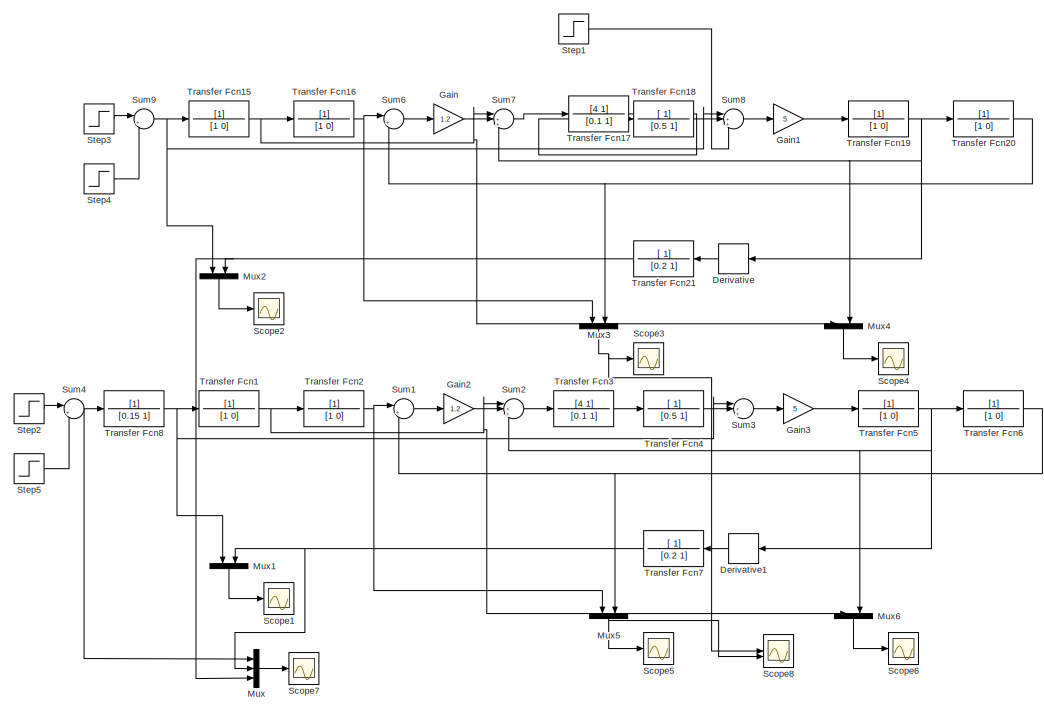
[diagram: root canvas - part 1/2, left side, full height]
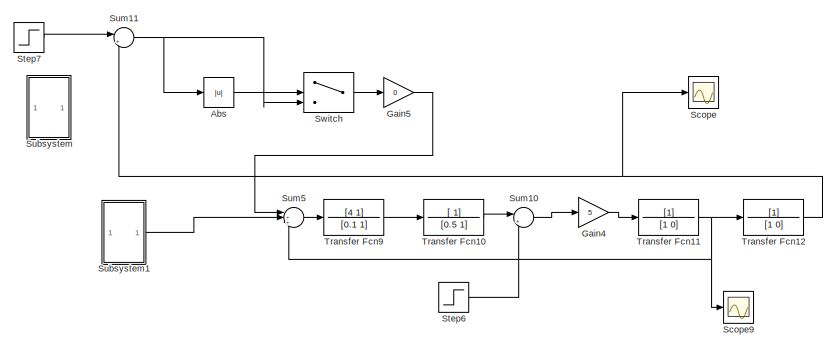
[diagram: root canvas - part 2/2, top right region]
MODEL slx_9bb0fc4a458e
KIND model
CONFIG AbsTol = auto
CONFIG EnableMultiTasking = off
CONFIG FixedStep = 1e-3
CONFIG MaxStep = auto
CONFIG MinStep = auto
CONFIG RelTol = 1e-3
CONFIG SampleTimeConstraint = Unconstrained
CONFIG SolverName = FixedStepAuto
CONFIG StartTime = 0.0
CONFIG StopTime = 9
BLOCK [Abs] Abs
  SaturateOnIntegerOverflow = off
BLOCK [Derivative] Derivative
BLOCK [Derivative] Derivative1
BLOCK [Gain] Gain
  Gain = 1.2
BLOCK [Gain] Gain1
  Gain = 5
BLOCK [Gain] Gain2
  Gain = 1.2
BLOCK [Gain] Gain3
  Gain = 5
BLOCK [Gain] Gain4
  Gain = 5
BLOCK [Gain] Gain5
  Gain = 0
BLOCK [Mux] Mux
  DisplayOption = bar
  Inputs = 3
BLOCK [Mux] Mux1
  DisplayOption = bar
  Inputs = 2
  NameLocation = left
BLOCK [Mux] Mux2
  DisplayOption = bar
  Inputs = 2
  NameLocation = left
BLOCK [Mux] Mux3
  DisplayOption = bar
  Inputs = 2
  NameLocation = left
BLOCK [Mux] Mux4
  DisplayOption = bar
  Inputs = 2
  NameLocation = left
BLOCK [Mux] Mux5
  DisplayOption = bar
  Inputs = 2
  NameLocation = left
BLOCK [Mux] Mux6
  DisplayOption = bar
  Inputs = 2
  NameLocation = left
BLOCK [Scope] Scope
  Floating = off
  NumInputPorts = 1
  ScopeSpecificationString = Simulink.scopes.TimeScopeBlockCfg('CurrentConfiguration', extmgr.ConfigurationSet(extmgr.Configuration('Core','General UI',true),extmgr.Configuration('Core','Source UI',true),extmgr.Configuration('Sources','WiredSimulink',true,'DataLoggingVariableName','ScopeData10'),extmgr.Configuration('Visuals','Time Domain',true,'SerializedDisplays',{struct('MinYLimReal','19.49749','MaxYLimReal','20.68841','YL...<+1454ch>
BLOCK [Scope] Scope1
  Floating = off
  NumInputPorts = 1
  ScopeSpecificationString = Simulink.scopes.TimeScopeBlockCfg('CurrentConfiguration', extmgr.ConfigurationSet(extmgr.Configuration('Core','General UI',true),extmgr.Configuration('Core','Source UI',true),extmgr.Configuration('Sources','WiredSimulink',true,'DataLoggingVariableName','ScopeData5'),extmgr.Configuration('Visuals','Time Domain',true,'SerializedDisplays',{struct('MinYLimReal','-1.80092','MaxYLimReal','1.71066','YLab...<+1435ch>
BLOCK [Scope] Scope2
  Floating = off
  NumInputPorts = 1
  ScopeSpecificationString = Simulink.scopes.TimeScopeBlockCfg('CurrentConfiguration', extmgr.ConfigurationSet(extmgr.Configuration('Core','General UI',true),extmgr.Configuration('Core','Source UI',true),extmgr.Configuration('Sources','WiredSimulink',true,'DataLoggingVariableName','ScopeData2'),extmgr.Configuration('Visuals','Time Domain',true,'SerializedDisplays',{struct('MinYLimReal','-2.47407','MaxYLimReal','1.63074','YLab...<+1435ch>
BLOCK [Scope] Scope3
  Floating = off
  NumInputPorts = 1
  ScopeSpecificationString = Simulink.scopes.TimeScopeBlockCfg('CurrentConfiguration', extmgr.ConfigurationSet(extmgr.Configuration('Core','General UI',true),extmgr.Configuration('Core','Source UI',true),extmgr.Configuration('Sources','WiredSimulink',true,'DataLoggingVariableName','ScopeData3'),extmgr.Configuration('Visuals','Time Domain',true,'SerializedDisplays',{struct('MinYLimReal','-2.5','MaxYLimReal','22.5','YLabelReal'...<+1469ch>
BLOCK [Scope] Scope4
  Floating = off
  NumInputPorts = 1
  ScopeSpecificationString = Simulink.scopes.TimeScopeBlockCfg('CurrentConfiguration', extmgr.ConfigurationSet(extmgr.Configuration('Core','General UI',true),extmgr.Configuration('Core','Source UI',true),extmgr.Configuration('Sources','WiredSimulink',true,'DataLoggingVariableName','ScopeData4'),extmgr.Configuration('Visuals','Time Domain',true,'SerializedDisplays',{struct('MinYLimReal','-0.76513','MaxYLimReal','4.60306','YLab...<+1445ch>
BLOCK [Scope] Scope5
  Floating = off
  NumInputPorts = 1
  ScopeSpecificationString = Simulink.scopes.TimeScopeBlockCfg('CurrentConfiguration', extmgr.ConfigurationSet(extmgr.Configuration('Core','General UI',true),extmgr.Configuration('Core','Source UI',true),extmgr.Configuration('Sources','WiredSimulink',true,'DataLoggingVariableName','ScopeData6'),extmgr.Configuration('Visuals','Time Domain',true,'SerializedDisplays',{struct('MinYLimReal','19.54504','MaxYLimReal','20.07778','YLa...<+1468ch>
BLOCK [Scope] Scope6
  Floating = off
  NumInputPorts = 1
  ScopeSpecificationString = Simulink.scopes.TimeScopeBlockCfg('CurrentConfiguration', extmgr.ConfigurationSet(extmgr.Configuration('Core','General UI',true),extmgr.Configuration('Core','Source UI',true),extmgr.Configuration('Sources','WiredSimulink',true,'DataLoggingVariableName','ScopeData7'),extmgr.Configuration('Visuals','Time Domain',true,'SerializedDisplays',{struct('MinYLimReal','-0.61957','MaxYLimReal','4.58674','YLab...<+1445ch>
BLOCK [Scope] Scope7
  Floating = off
  NumInputPorts = 1
  ScopeSpecificationString = Simulink.scopes.TimeScopeBlockCfg('CurrentConfiguration', extmgr.ConfigurationSet(extmgr.Configuration('Core','General UI',true),extmgr.Configuration('Core','Source UI',true),extmgr.Configuration('Sources','WiredSimulink',true,'DataLoggingVariableName','ScopeData8'),extmgr.Configuration('Visuals','Time Domain',true,'SerializedDisplays',{struct('MinYLimReal','-2.47401','MaxYLimReal','1.63071','YLab...<+1451ch>
BLOCK [Scope] Scope8
  Floating = off
  NumInputPorts = 2
  ScopeSpecificationString = Simulink.scopes.TimeScopeBlockCfg('CurrentConfiguration', extmgr.ConfigurationSet(extmgr.Configuration('Core','General UI',true),extmgr.Configuration('Core','Source UI',true),extmgr.Configuration('Sources','WiredSimulink',true,'DataLoggingVariableName','ScopeData9'),extmgr.Configuration('Visuals','Time Domain',true,'SerializedDisplays',{struct('MinYLimReal','-2.5','MaxYLimReal','22.5','YLabelReal'...<+1501ch>
BLOCK [Scope] Scope9
  Floating = off
  NumInputPorts = 1
  ScopeSpecificationString = Simulink.scopes.TimeScopeBlockCfg('CurrentConfiguration', extmgr.ConfigurationSet(extmgr.Configuration('Core','General UI',true),extmgr.Configuration('Core','Source UI',true),extmgr.Configuration('Sources','WiredSimulink',true,'DataLoggingVariableName','ScopeData11'),extmgr.Configuration('Visuals','Time Domain',true,'SerializedDisplays',{struct('MinYLimReal','-0.49032','MaxYLimReal','4.41291','YLa...<+1429ch>
BLOCK [Step] Step1
  After = -1
  SampleTime = 0
  Time = 7
BLOCK [Step] Step2
  After = 0
  Before = 1
  SampleTime = 0
  Time = 4
BLOCK [Step] Step3
  After = 0
  Before = 1
  SampleTime = 0
  Time = 4
BLOCK [Step] Step4
  After = -1
  SampleTime = 0
  Time = 5
BLOCK [Step] Step5
  After = -1
  SampleTime = 0
  Time = 5
BLOCK [Step] Step6
  After = -1
  SampleTime = 0
  Time = 7
BLOCK [Step] Step7
  After = -1
  SampleTime = 0
  Time = 7
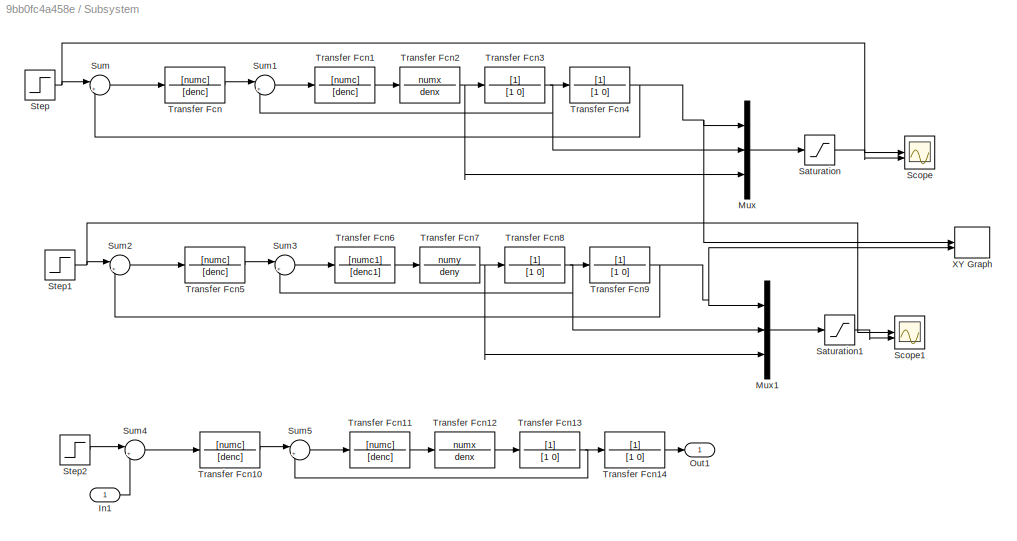
BLOCK [SubSystem] Subsystem
BLOCK [Inport] Subsystem/In1
BLOCK [Mux] Subsystem/Mux
  Commented = on
  DisplayOption = bar
  Inputs = 3
BLOCK [Mux] Subsystem/Mux1
  Commented = on
  DisplayOption = bar
  Inputs = 3
BLOCK [Outport] Subsystem/Out1
BLOCK [Saturate] Subsystem/Saturation
  Commented = on
  LowerLimit = -inf
  UpperLimit = inf
BLOCK [Saturate] Subsystem/Saturation1
  Commented = on
  LowerLimit = -inf
  UpperLimit = inf
BLOCK [Scope] Subsystem/Scope
  Commented = on
  Floating = off
  NumInputPorts = 2
  ScopeSpecificationString = Simulink.scopes.TimeScopeBlockCfg('CurrentConfiguration', extmgr.ConfigurationSet(extmgr.Configuration('Core','General UI',true),extmgr.Configuration('Core','Source UI',true),extmgr.Configuration('Sources','WiredSimulink',true),extmgr.Configuration('Visuals','Time Domain',true,'SerializedDisplays',{struct('MinYLimReal','-45.17988','MaxYLimReal','248.04184','YLabelReal','','MinYLimMag','0.00000','M...<+1458ch>
BLOCK [Scope] Subsystem/Scope1
  Commented = on
  Floating = off
  NumInputPorts = 2
  ScopeSpecificationString = Simulink.scopes.TimeScopeBlockCfg('CurrentConfiguration', extmgr.ConfigurationSet(extmgr.Configuration('Core','General UI',true),extmgr.Configuration('Core','Source UI',true),extmgr.Configuration('Sources','WiredSimulink',true,'DataLoggingVariableName','ScopeData1'),extmgr.Configuration('Visuals','Time Domain',true,'SerializedDisplays',{struct('MinYLimReal','-71.39278','MaxYLimReal','289.35254','Y...<+1499ch>
BLOCK [Step] Subsystem/Step
  After = 80
  Before = 40
  Commented = on
  SampleTime = 0
  Time = 17
BLOCK [Step] Subsystem/Step1
  After = 60
  Before = 60
  Commented = on
  SampleTime = 0
BLOCK [Step] Subsystem/Step2
  After = 80
  Before = 40
  Commented = on
  SampleTime = 0
  Time = 17
BLOCK [Sum] Subsystem/Sum
  Commented = on
  Inputs = |+-
BLOCK [Sum] Subsystem/Sum1
  Commented = on
  Inputs = |+-
BLOCK [Sum] Subsystem/Sum2
  Commented = on
  Inputs = |+-
BLOCK [Sum] Subsystem/Sum3
  Commented = on
  Inputs = |+-
BLOCK [Sum] Subsystem/Sum4
  Commented = on
  Inputs = |+-
BLOCK [Sum] Subsystem/Sum5
  Commented = on
  Inputs = |+-
BLOCK [TransferFcn] Subsystem/Transfer Fcn
  Commented = on
  Denominator = [denc]
  Numerator = [numc]
BLOCK [TransferFcn] Subsystem/Transfer Fcn1
  Commented = on
  Denominator = [denc]
  Numerator = [numc]
BLOCK [TransferFcn] Subsystem/Transfer Fcn10
  Commented = on
  Denominator = [denc]
  Numerator = [numc]
BLOCK [TransferFcn] Subsystem/Transfer Fcn11
  Commented = on
  Denominator = [denc]
  Numerator = [numc]
BLOCK [TransferFcn] Subsystem/Transfer Fcn12
  Commented = on
  Denominator = denx
  Numerator = numx
BLOCK [TransferFcn] Subsystem/Transfer Fcn13
  Commented = on
  Denominator = [1 0]
BLOCK [TransferFcn] Subsystem/Transfer Fcn14
  Commented = on
  Denominator = [1 0]
BLOCK [TransferFcn] Subsystem/Transfer Fcn2
  Commented = on
  Denominator = denx
  Numerator = numx
BLOCK [TransferFcn] Subsystem/Transfer Fcn3
  Commented = on
  Denominator = [1 0]
BLOCK [TransferFcn] Subsystem/Transfer Fcn4
  Commented = on
  Denominator = [1 0]
BLOCK [TransferFcn] Subsystem/Transfer Fcn5
  Commented = on
  Denominator = [denc]
  Numerator = [numc]
BLOCK [TransferFcn] Subsystem/Transfer Fcn6
  Commented = on
  Denominator = [denc1]
  Numerator = [numc1]
BLOCK [TransferFcn] Subsystem/Transfer Fcn7
  Commented = on
  Denominator = deny
  Numerator = numy
BLOCK [TransferFcn] Subsystem/Transfer Fcn8
  Commented = on
  Denominator = [1 0]
BLOCK [TransferFcn] Subsystem/Transfer Fcn9
  Commented = on
  Denominator = [1 0]
BLOCK [Record] Subsystem/XY Graph
  Commented = on
  CompatibilityTag = XY
  FileSettingsInternal = {"entries":[{"content":{"excelSettings":{"content":{},"type":"Streamout.ExcelSettings"}},"type":"Streamout.FileSettingStorage","uuid":""}],"packageUris":["http:\/\/schema.mathworks.com\/mf0\/streamout_blocks\/R2020a"],"version":"1.0"}
  Layout = [1 1]
  SignalsInternal = {"entries":[{"content":{"signals":[{"content":{"blockPath":[],"dimensions":[1],"domain":"","lineColor":"#a2142f","plots":[1],"port":1,"sid":[""],"signalID":29,"signalName":"Transfer Fcn4"},"type":"RecordBlkView.Signal","uuid":""},{"content":{"blockPath":[],"dimensions":[1],"domain":"","lineColor":"#139fff","plots":[1],"port":2,"sid":[""],"signalID":33,"signalName":"Transfer Fcn9"},"type":"RecordBl...<+170ch>
  VisualizationBindings = {"xyplotplugin":{"info":[{"series":[{"bindingParametersList":[{"parameter":"X-Axis","signalID":29,"signalName":"Transfer Fcn4"},{"parameter":"Y-Axis","signalID":33,"signalName":"Transfer Fcn9"}],"seriesID":43623}],"subplotID":1}]}}
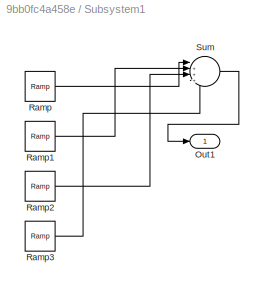
BLOCK [SubSystem] Subsystem1
BLOCK [Outport] Subsystem1/Out1
BLOCK [Reference] Subsystem1/Ramp  REF=simulink/Sources/Ramp
  SourceBlock = simulink/Sources/Ramp
  SourceType = Ramp
BLOCK [Reference] Subsystem1/Ramp1  REF=simulink/Sources/Ramp
  SourceBlock = simulink/Sources/Ramp
  SourceType = Ramp
BLOCK [Reference] Subsystem1/Ramp2  REF=simulink/Sources/Ramp
  SourceBlock = simulink/Sources/Ramp
  SourceType = Ramp
BLOCK [Reference] Subsystem1/Ramp3  REF=simulink/Sources/Ramp
  SourceBlock = simulink/Sources/Ramp
  SourceType = Ramp
BLOCK [Sum] Subsystem1/Sum
  Inputs = |++++
BLOCK [Sum] Sum1
  Inputs = |+-
BLOCK [Sum] Sum10
  Inputs = |+-
BLOCK [Sum] Sum11
  Inputs = |+-
BLOCK [Sum] Sum2
  Inputs = |++-
BLOCK [Sum] Sum3
  Inputs = |+++
BLOCK [Sum] Sum4
  Inputs = |++
BLOCK [Sum] Sum5
  Inputs = |++-
BLOCK [Sum] Sum6
  Inputs = |+-
BLOCK [Sum] Sum7
  Inputs = |++-
BLOCK [Sum] Sum8
  Inputs = |+++
BLOCK [Sum] Sum9
  Inputs = |++
BLOCK [Switch] Switch
  Criteria = u2 > Threshold
  InputSameDT = off
  SaturateOnIntegerOverflow = off
  Threshold = 1.5
BLOCK [TransferFcn] Transfer Fcn1
  Denominator = [1 0]
BLOCK [TransferFcn] Transfer Fcn10
  Denominator = [0.5 1]
  Numerator = [ 1]
BLOCK [TransferFcn] Transfer Fcn11
  Denominator = [1 0]
BLOCK [TransferFcn] Transfer Fcn12
  Denominator = [1 0]
BLOCK [TransferFcn] Transfer Fcn15
  Denominator = [1 0]
BLOCK [TransferFcn] Transfer Fcn16
  Denominator = [1 0]
BLOCK [TransferFcn] Transfer Fcn17
  Denominator = [0.1 1]
  Numerator = [4 1]
BLOCK [TransferFcn] Transfer Fcn18
  Denominator = [0.5 1]
  Numerator = [ 1]
BLOCK [TransferFcn] Transfer Fcn19
  Denominator = [1 0]
BLOCK [TransferFcn] Transfer Fcn2
  Denominator = [1 0]
BLOCK [TransferFcn] Transfer Fcn20
  Denominator = [1 0]
BLOCK [TransferFcn] Transfer Fcn21
  Denominator = [0.2 1]
  Numerator = [ 1]
BLOCK [TransferFcn] Transfer Fcn3
  Denominator = [0.1 1]
  Numerator = [4 1]
BLOCK [TransferFcn] Transfer Fcn4
  Denominator = [0.5 1]
  Numerator = [ 1]
BLOCK [TransferFcn] Transfer Fcn5
  Denominator = [1 0]
BLOCK [TransferFcn] Transfer Fcn6
  Denominator = [1 0]
BLOCK [TransferFcn] Transfer Fcn7
  Denominator = [0.2 1]
  Numerator = [ 1]
BLOCK [TransferFcn] Transfer Fcn8
  Denominator = [0.15 1]
BLOCK [TransferFcn] Transfer Fcn9
  Denominator = [0.1 1]
  Numerator = [4 1]
LINE Abs:1 -> Switch:2
LINE Derivative1:1 -> Transfer Fcn7:1
LINE Derivative:1 -> Transfer Fcn21:1
LINE Gain1:1 -> Transfer Fcn19:1
LINE Gain2:1 -> Sum2:1
LINE Gain3:1 -> Transfer Fcn5:1
LINE Gain4:1 -> Transfer Fcn11:1
LINE Gain5:1 -> Sum5:1
LINE Gain:1 -> Sum7:1
LINE Mux1:1 -> Scope1:1
LINE Mux2:1 -> Scope2:1
NET Mux3:1 -> Scope3:1, Scope8:1
LINE Mux4:1 -> Scope4:1
NET Mux5:1 -> Scope5:1, Scope8:2
LINE Mux6:1 -> Scope6:1
LINE Mux:1 -> Scope7:1
LINE Step1:1 -> Sum8:3
LINE Step2:1 -> Sum4:1
LINE Step3:1 -> Sum9:1
LINE Step4:1 -> Sum9:2
LINE Step5:1 -> Sum4:2
LINE Step6:1 -> Sum10:2
LINE Step7:1 -> Sum11:1
LINE Subsystem/In1:1 -> Subsystem/Sum4:2
LINE Subsystem/Mux1:1 -> Subsystem/Saturation1:1
LINE Subsystem/Mux:1 -> Subsystem/Saturation:1
LINE Subsystem/Saturation1:1 -> Subsystem/Scope1:2
LINE Subsystem/Saturation:1 -> Subsystem/Scope:2
NET Subsystem/Step1:1 -> Subsystem/Scope1:1, Subsystem/Sum2:1
LINE Subsystem/Step2:1 -> Subsystem/Sum4:1
NET Subsystem/Step:1 -> Subsystem/Scope:1, Subsystem/Sum:1
LINE Subsystem/Sum1:1 -> Subsystem/Transfer Fcn1:1
LINE Subsystem/Sum2:1 -> Subsystem/Transfer Fcn5:1
LINE Subsystem/Sum3:1 -> Subsystem/Transfer Fcn6:1
LINE Subsystem/Sum4:1 -> Subsystem/Transfer Fcn10:1
LINE Subsystem/Sum5:1 -> Subsystem/Transfer Fcn11:1
LINE Subsystem/Sum:1 -> Subsystem/Transfer Fcn:1
LINE Subsystem/Transfer Fcn10:1 -> Subsystem/Sum5:1
LINE Subsystem/Transfer Fcn11:1 -> Subsystem/Transfer Fcn12:1
LINE Subsystem/Transfer Fcn12:1 -> Subsystem/Transfer Fcn13:1
NET Subsystem/Transfer Fcn13:1 -> Subsystem/Sum5:2, Subsystem/Transfer Fcn14:1
LINE Subsystem/Transfer Fcn14:1 -> Subsystem/Out1:1
LINE Subsystem/Transfer Fcn1:1 -> Subsystem/Transfer Fcn2:1
NET Subsystem/Transfer Fcn2:1 -> Subsystem/Mux:3, Subsystem/Transfer Fcn3:1
NET Subsystem/Transfer Fcn3:1 -> Subsystem/Mux:2, Subsystem/Sum1:2, Subsystem/Transfer Fcn4:1
NET Subsystem/Transfer Fcn4:1 -> Subsystem/Mux:1, Subsystem/Sum:2, Subsystem/XY Graph:1
LINE Subsystem/Transfer Fcn5:1 -> Subsystem/Sum3:1
LINE Subsystem/Transfer Fcn6:1 -> Subsystem/Transfer Fcn7:1
NET Subsystem/Transfer Fcn7:1 -> Subsystem/Mux1:3, Subsystem/Transfer Fcn8:1
NET Subsystem/Transfer Fcn8:1 -> Subsystem/Mux1:2, Subsystem/Sum3:2, Subsystem/Transfer Fcn9:1
NET Subsystem/Transfer Fcn9:1 -> Subsystem/Mux1:1, Subsystem/Sum2:2, Subsystem/XY Graph:2
LINE Subsystem/Transfer Fcn:1 -> Subsystem/Sum1:1
LINE Subsystem1/Ramp1:1 -> Subsystem1/Sum:2
LINE Subsystem1/Ramp2:1 -> Subsystem1/Sum:3
LINE Subsystem1/Ramp3:1 -> Subsystem1/Sum:4
LINE Subsystem1/Ramp:1 -> Subsystem1/Sum:1
LINE Subsystem1/Sum:1 -> Subsystem1/Out1:1
LINE Subsystem1:1 -> Sum5:2
LINE Sum10:1 -> Gain4:1
NET Sum11:1 -> Abs:1, Switch:3
LINE Sum1:1 -> Gain2:1
LINE Sum2:1 -> Transfer Fcn3:1
LINE Sum3:1 -> Gain3:1
NET Sum4:1 -> Mux:1, Transfer Fcn8:1
LINE Sum5:1 -> Transfer Fcn9:1
LINE Sum6:1 -> Gain:1
LINE Sum7:1 -> Transfer Fcn17:1
LINE Sum8:1 -> Gain1:1
NET Sum9:1 -> Mux2:1, Sum8:2, Transfer Fcn15:1
LINE Switch:1 -> Gain5:1
LINE Transfer Fcn10:1 -> Sum10:1
NET Transfer Fcn11:1 -> Scope9:1, Sum5:3, Transfer Fcn12:1
NET Transfer Fcn12:1 -> Scope:1, Sum11:2
NET Transfer Fcn15:1 -> Mux4:1, Sum7:2, Transfer Fcn16:1
NET Transfer Fcn16:1 -> Mux3:1, Sum6:1
LINE Transfer Fcn17:1 -> Transfer Fcn18:1
LINE Transfer Fcn18:1 -> Sum8:1
NET Transfer Fcn19:1 -> Derivative:1, Mux4:2, Sum7:3, Transfer Fcn20:1
NET Transfer Fcn1:1 -> Mux6:1, Sum2:2, Transfer Fcn2:1
NET Transfer Fcn20:1 -> Mux3:2, Sum6:2
NET Transfer Fcn21:1 -> Mux2:2, Mux:3
NET Transfer Fcn2:1 -> Mux5:1, Sum1:1
LINE Transfer Fcn3:1 -> Transfer Fcn4:1
LINE Transfer Fcn4:1 -> Sum3:1
NET Transfer Fcn5:1 -> Derivative1:1, Mux6:2, Sum2:3, Transfer Fcn6:1
NET Transfer Fcn6:1 -> Mux5:2, Sum1:2
NET Transfer Fcn7:1 -> Mux1:2, Mux:2
NET Transfer Fcn8:1 -> Mux1:1, Sum3:2, Transfer Fcn1:1
LINE Transfer Fcn9:1 -> Transfer Fcn10:1
note: NET lines group one-source signal fan-out (src -> all destinations, sorted); 1:1 wires keep LINE
